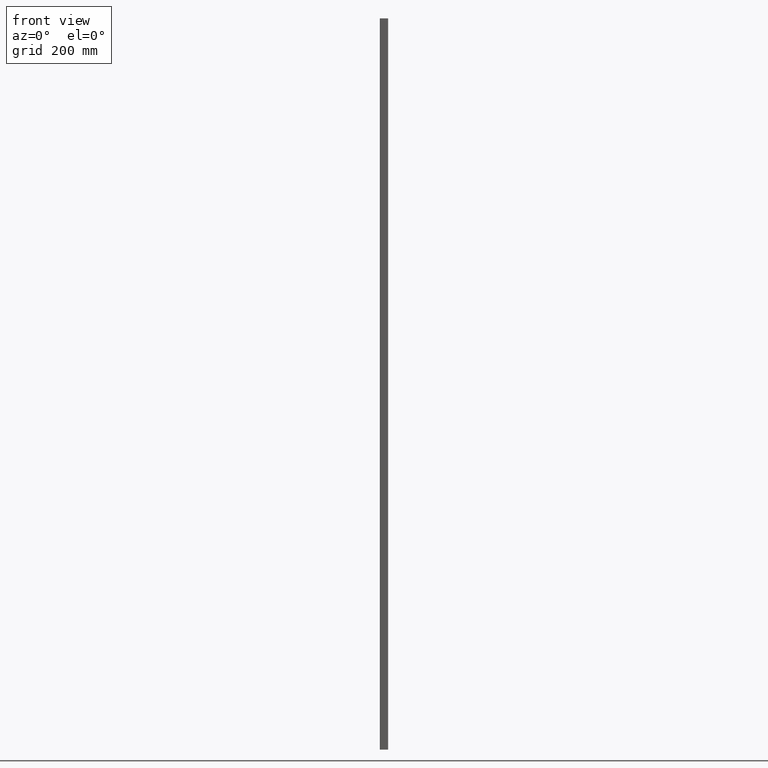
[diagram: clean part render]
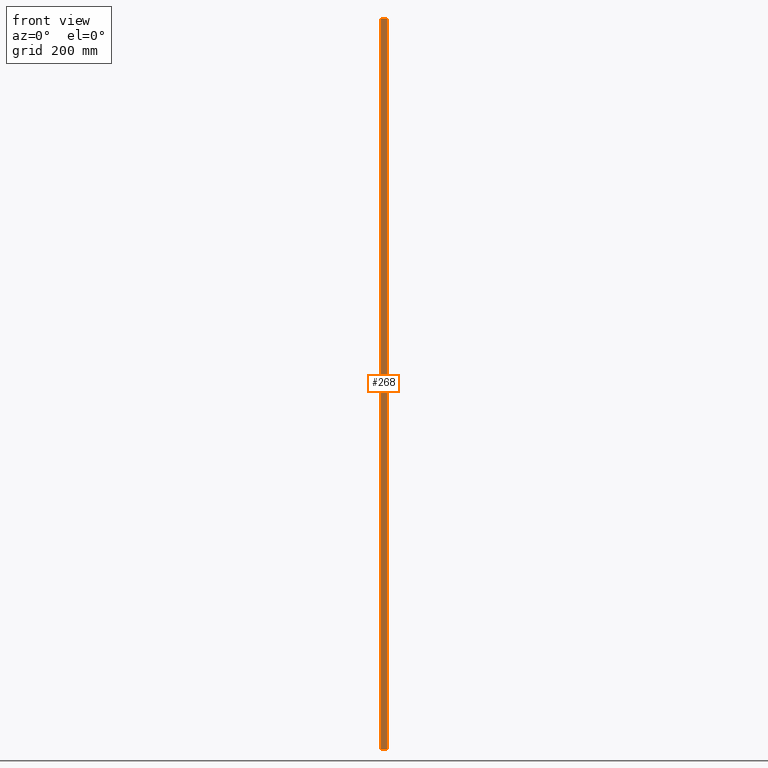
[diagram: same view with one face highlighted and labeled with its STEP entity id]
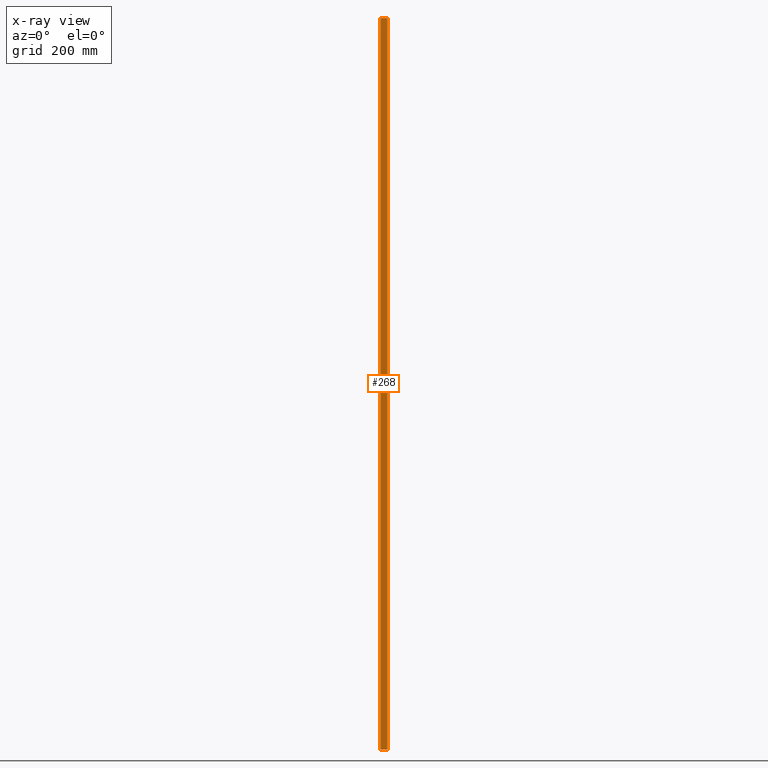
[diagram: x-ray of the same camera — body ghosted, the highlighted face saturated]
A machine part, front view. The second image highlights one B-rep face of the part: STEP entity #268.
The next image is the same camera in x-ray: the body ghosted, the highlighted face saturated — about 0% of this face is hidden behind the body in this view.
In plain terms, the highlighted planar face has unit normal (0, -1, 0).
Its self-contained STEP definition (entity closure, byte-faithful):
#18 = LINE ( 'NONE', #1121, #515 ) ;
#135 = VERTEX_POINT ( 'NONE', #565 ) ;
#240 = CARTESIAN_POINT ( 'NONE',  ( -8.300000000000000711, 0.000000000000000000, -1825.000000000000000 ) ) ;
#244 = VERTEX_POINT ( 'NONE', #1021 ) ;
#250 = AXIS2_PLACEMENT_3D ( 'NONE', #1114, #920, #761 ) ;
#268 = ADVANCED_FACE ( 'NONE', ( #944 ), #424, .T. ) ;
#316 = CARTESIAN_POINT ( 'NONE',  ( 8.300000000000000711, 0.000000000000000000, -1825.000000000000000 ) ) ;
#371 = VECTOR ( 'NONE', #1038, 1000.000000000000000 ) ;
#394 = EDGE_CURVE ( 'NONE', #986, #244, #18, .T. ) ;
#416 = ORIENTED_EDGE ( 'NONE', *, *, #433, .T. ) ;
#424 = PLANE ( 'NONE',  #250 ) ;
#433 = EDGE_CURVE ( 'NONE', #852, #244, #872, .T. ) ;
#515 = VECTOR ( 'NONE', #1053, 1000.000000000000000 ) ;
#565 = CARTESIAN_POINT ( 'NONE',  ( -8.300000000000000711, 0.000000000000000000, -1825.000000000000000 ) ) ;
#567 = ORIENTED_EDGE ( 'NONE', *, *, #394, .F. ) ;
#579 = DIRECTION ( 'NONE',  ( 1.000000000000000000, 0.000000000000000000, 0.000000000000000000 ) ) ;
#656 = EDGE_CURVE ( 'NONE', #135, #986, #826, .T. ) ;
#705 = EDGE_CURVE ( 'NONE', #135, #852, #1019, .T. ) ;
#761 = DIRECTION ( 'NONE',  ( 0.000000000000000000, -0.000000000000000000, -1.000000000000000000 ) ) ;
#796 = EDGE_LOOP ( 'NONE', ( #567, #819, #801, #416 ) ) ;
#801 = ORIENTED_EDGE ( 'NONE', *, *, #705, .T. ) ;
#819 = ORIENTED_EDGE ( 'NONE', *, *, #656, .F. ) ;
#823 = VECTOR ( 'NONE', #579, 1000.000000000000000 ) ;
#826 = LINE ( 'NONE', #240, #1063 ) ;
#852 = VERTEX_POINT ( 'NONE', #316 ) ;
#872 = LINE ( 'NONE', #878, #371 ) ;
#878 = CARTESIAN_POINT ( 'NONE',  ( 8.300000000000000711, 0.000000000000000000, -1825.000000000000000 ) ) ;
#920 = DIRECTION ( 'NONE',  ( 0.000000000000000000, -1.000000000000000000, 0.000000000000000000 ) ) ;
#925 = CARTESIAN_POINT ( 'NONE',  ( -8.300000000000000711, 0.000000000000000000, 0.000000000000000000 ) ) ;
#944 = FACE_OUTER_BOUND ( 'NONE', #796, .T. ) ;
#986 = VERTEX_POINT ( 'NONE', #925 ) ;
#1014 = CARTESIAN_POINT ( 'NONE',  ( -8.300000000000000711, 0.000000000000000000, -1825.000000000000000 ) ) ;
#1019 = LINE ( 'NONE', #1014, #823 ) ;
#1021 = CARTESIAN_POINT ( 'NONE',  ( 8.300000000000000711, 0.000000000000000000, 0.000000000000000000 ) ) ;
#1024 = DIRECTION ( 'NONE',  ( 0.000000000000000000, 0.000000000000000000, 1.000000000000000000 ) ) ;
#1038 = DIRECTION ( 'NONE',  ( 0.000000000000000000, 0.000000000000000000, 1.000000000000000000 ) ) ;
#1053 = DIRECTION ( 'NONE',  ( 1.000000000000000000, 0.000000000000000000, 0.000000000000000000 ) ) ;
#1063 = VECTOR ( 'NONE', #1024, 1000.000000000000000 ) ;
#1114 = CARTESIAN_POINT ( 'NONE',  ( -8.300000000000000711, 0.000000000000000000, -1825.000000000000000 ) ) ;
#1121 = CARTESIAN_POINT ( 'NONE',  ( -8.300000000000000711, 0.000000000000000000, 0.000000000000000000 ) ) ;